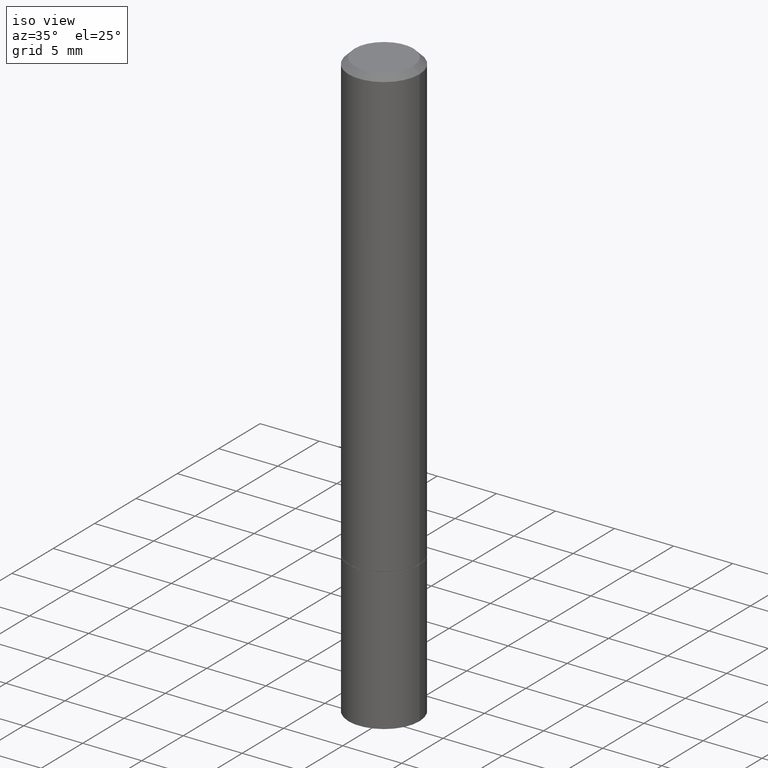
[diagram: clean part render]
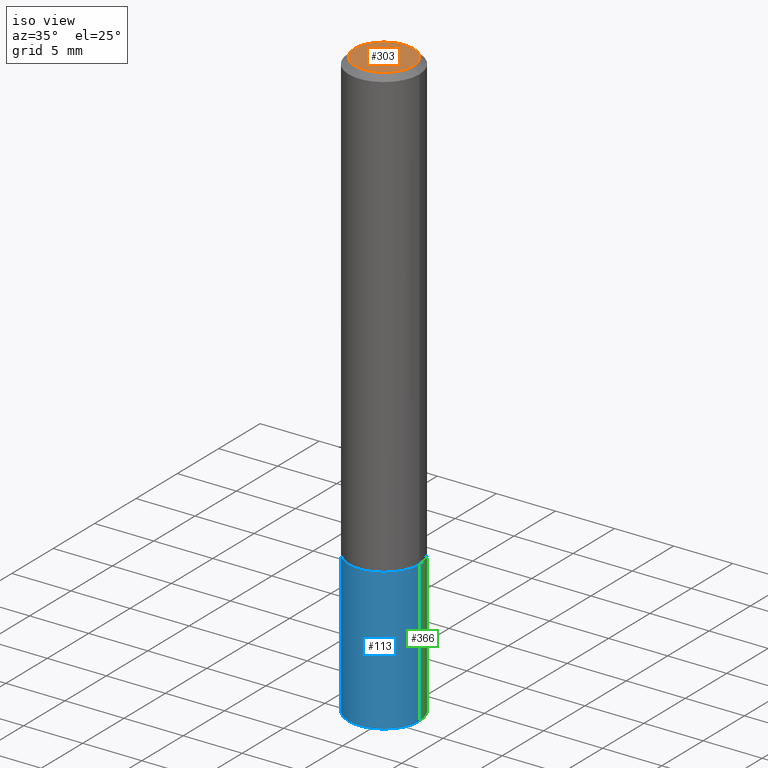
[diagram: same view with three faces highlighted in distinct colors, each labeled with its STEP entity id]
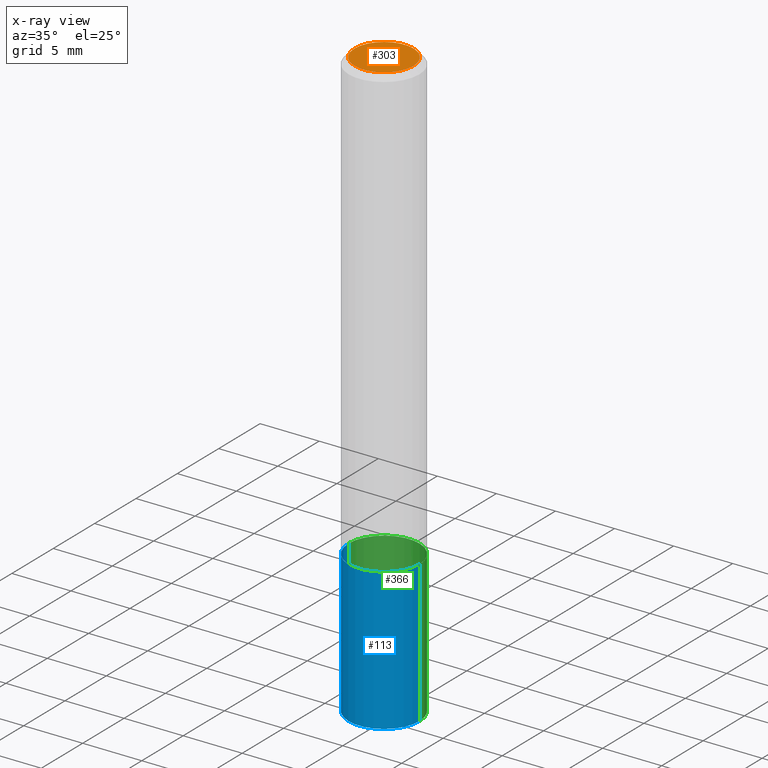
[diagram: x-ray of the same camera — body ghosted, the three highlighted faces saturated]
A machine part, iso view with three faces highlighted in distinct colors.
The next image is the same camera in x-ray (body ghosted, the three faces saturated) — at least one of them is partly hidden behind the body in this view.
Their STEP definitions:

[orange] entity #303 — the highlighted planar face has unit normal (0, -0, -1).
#4 = ORIENTED_EDGE ( 'NONE', *, *, #172, .T. ) ;
#18 = CIRCLE ( 'NONE', #291, 0.09809999999999979847 ) ;
#28 = DIRECTION ( 'NONE',  ( -2.445468806185136597E-29, 3.491481338843145583E-15, 1.000000000000000000 ) ) ;
#51 = CARTESIAN_POINT ( 'NONE',  ( 6.850286386810212718E-16, 0.09809999999999979847, -3.510513443207126726E-16 ) ) ;
#78 = DIRECTION ( 'NONE',  ( 2.438088387897960049E-29, -3.491481338843145188E-15, -1.000000000000000000 ) ) ;
#81 = CARTESIAN_POINT ( 'NONE',  ( -0.09809999999999979847, 7.199434520694523292E-16, -1.707404996040655701E-17 ) ) ;
#130 = FACE_OUTER_BOUND ( 'NONE', #318, .T. ) ;
#131 = DIRECTION ( 'NONE',  ( -2.445468806185136597E-29, 3.491481338843145583E-15, 1.000000000000000000 ) ) ;
#172 = EDGE_CURVE ( 'NONE', #226, #352, #319, .T. ) ;
#203 = AXIS2_PLACEMENT_3D ( 'NONE', #51, #78, #243 ) ;
#209 = AXIS2_PLACEMENT_3D ( 'NONE', #238, #131, #222 ) ;
#219 = CARTESIAN_POINT ( 'NONE',  ( 4.175405657340879278E-46, -5.961372681521788801E-32, -1.707404996040164512E-17 ) ) ;
#222 = DIRECTION ( 'NONE',  ( 1.000000000000000000, -6.982962677686267499E-15, 4.875229006325907382E-29 ) ) ;
#226 = VERTEX_POINT ( 'NONE', #81 ) ;
#229 = ORIENTED_EDGE ( 'NONE', *, *, #252, .T. ) ;
#238 = CARTESIAN_POINT ( 'NONE',  ( 4.175405657340879278E-46, -5.961372681521788801E-32, -1.707404996040164512E-17 ) ) ;
#243 = DIRECTION ( 'NONE',  ( -1.000000000000000000, 6.982962677686265922E-15, -4.876176775795935793E-29 ) ) ;
#252 = EDGE_CURVE ( 'NONE', #352, #226, #18, .T. ) ;
#289 = CARTESIAN_POINT ( 'NONE',  ( 0.09809999999999979847, -7.765346469475326737E-16, -1.707404996039653601E-17 ) ) ;
#291 = AXIS2_PLACEMENT_3D ( 'NONE', #219, #28, #365 ) ;
#303 = ADVANCED_FACE ( 'NONE', ( #130 ), #336, .F. ) ;
#318 = EDGE_LOOP ( 'NONE', ( #4, #229 ) ) ;
#319 = CIRCLE ( 'NONE', #209, 0.09809999999999979847 ) ;
#336 = PLANE ( 'NONE',  #203 ) ;
#352 = VERTEX_POINT ( 'NONE', #289 ) ;
#365 = DIRECTION ( 'NONE',  ( 1.000000000000000000, -6.982962677686267499E-15, 4.875229006325907382E-29 ) ) ;

[blue] entity #113 — the highlighted cylindrical surface (partial cylindrical patch) has radius 2.9997 mm, axis along (-0, 0, 1).
#5 = VECTOR ( 'NONE', #174, 39.37007874015748143 ) ;
#9 = FACE_OUTER_BOUND ( 'NONE', #29, .T. ) ;
#16 = DIRECTION ( 'NONE',  ( -2.445468806185136597E-29, 3.491481338843145583E-15, 1.000000000000000000 ) ) ;
#19 = DIRECTION ( 'NONE',  ( -2.445468806185136877E-29, 3.491481338843145188E-15, 1.000000000000000000 ) ) ;
#26 = CARTESIAN_POINT ( 'NONE',  ( -0.1180999999999999966, 8.391509709326782957E-16, -5.809262341591043784E-30 ) ) ;
#29 = EDGE_LOOP ( 'NONE', ( #259, #67, #40, #138 ) ) ;
#36 = CARTESIAN_POINT ( 'NONE',  ( 4.813905344975441835E-29, -6.872981015512731707E-15, -1.968500000000000139 ) ) ;
#40 = ORIENTED_EDGE ( 'NONE', *, *, #96, .T. ) ;
#60 = EDGE_CURVE ( 'NONE', #144, #88, #296, .T. ) ;
#63 = DIRECTION ( 'NONE',  ( -2.445468806185136597E-29, 3.491481338843145583E-15, 1.000000000000000000 ) ) ;
#67 = ORIENTED_EDGE ( 'NONE', *, *, #145, .T. ) ;
#86 = VECTOR ( 'NONE', #19, 39.37007874015748143 ) ;
#88 = VERTEX_POINT ( 'NONE', #176 ) ;
#96 = EDGE_CURVE ( 'NONE', #341, #88, #236, .T. ) ;
#105 = CIRCLE ( 'NONE', #183, 0.1180999999999999966 ) ;
#113 = ADVANCED_FACE ( 'NONE', ( #9 ), #124, .T. ) ;
#121 = CARTESIAN_POINT ( 'NONE',  ( 0.000000000000000000, 0.000000000000000000, 0.000000000000000000 ) ) ;
#124 = CYLINDRICAL_SURFACE ( 'NONE', #132, 0.1180999999999999966 ) ;
#132 = AXIS2_PLACEMENT_3D ( 'NONE', #121, #180, #207 ) ;
#138 = ORIENTED_EDGE ( 'NONE', *, *, #60, .F. ) ;
#144 = VERTEX_POINT ( 'NONE', #294 ) ;
#145 = EDGE_CURVE ( 'NONE', #286, #341, #105, .T. ) ;
#147 = DIRECTION ( 'NONE',  ( 1.000000000000000000, -6.982962677686265133E-15, 0.000000000000000000 ) ) ;
#174 = DIRECTION ( 'NONE',  ( -2.445468806185136877E-29, 3.491481338843145188E-15, 1.000000000000000000 ) ) ;
#176 = CARTESIAN_POINT ( 'NONE',  ( 0.1180999999999999966, -6.048293123277977134E-15, -1.496099999999999985 ) ) ;
#180 = DIRECTION ( 'NONE',  ( -2.445468806185136597E-29, 3.491481338843145583E-15, 1.000000000000000000 ) ) ;
#182 = LINE ( 'NONE', #26, #86 ) ;
#183 = AXIS2_PLACEMENT_3D ( 'NONE', #36, #63, #147 ) ;
#188 = CARTESIAN_POINT ( 'NONE',  ( 0.1180999999999999966, -7.697668907747479970E-15, -1.968500000000000139 ) ) ;
#207 = DIRECTION ( 'NONE',  ( 1.000000000000000000, -6.982962677686266711E-15, 4.876176775795936353E-29 ) ) ;
#236 = LINE ( 'NONE', #265, #5 ) ;
#259 = ORIENTED_EDGE ( 'NONE', *, *, #288, .F. ) ;
#260 = CARTESIAN_POINT ( 'NONE',  ( 3.658665880933582389E-29, -5.223605231043229660E-15, -1.496099999999999985 ) ) ;
#263 = AXIS2_PLACEMENT_3D ( 'NONE', #260, #16, #302 ) ;
#265 = CARTESIAN_POINT ( 'NONE',  ( 0.1180999999999999966, -8.246878922347480654E-16, 5.758764772215000440E-30 ) ) ;
#286 = VERTEX_POINT ( 'NONE', #338 ) ;
#288 = EDGE_CURVE ( 'NONE', #286, #144, #182, .T. ) ;
#294 = CARTESIAN_POINT ( 'NONE',  ( -0.1180999999999999966, -5.209142152345302092E-15, -1.496099999999999985 ) ) ;
#296 = CIRCLE ( 'NONE', #263, 0.1180999999999999966 ) ;
#302 = DIRECTION ( 'NONE',  ( 1.000000000000000000, -6.982962677686265133E-15, 0.000000000000000000 ) ) ;
#338 = CARTESIAN_POINT ( 'NONE',  ( -0.1180999999999999966, -5.209142152345302092E-15, -1.968500000000000139 ) ) ;
#341 = VERTEX_POINT ( 'NONE', #188 ) ;

[green] entity #366 — the highlighted cylindrical surface (partial cylindrical patch) has radius 2.9997 mm, axis along (-0, 0, 1).
#5 = VECTOR ( 'NONE', #174, 39.37007874015748143 ) ;
#19 = DIRECTION ( 'NONE',  ( -2.445468806185136877E-29, 3.491481338843145188E-15, 1.000000000000000000 ) ) ;
#26 = CARTESIAN_POINT ( 'NONE',  ( -0.1180999999999999966, 8.391509709326782957E-16, -5.809262341591043784E-30 ) ) ;
#30 = EDGE_LOOP ( 'NONE', ( #58, #115, #193, #118 ) ) ;
#50 = EDGE_CURVE ( 'NONE', #341, #286, #179, .T. ) ;
#52 = CYLINDRICAL_SURFACE ( 'NONE', #345, 0.1180999999999999966 ) ;
#58 = ORIENTED_EDGE ( 'NONE', *, *, #50, .T. ) ;
#82 = DIRECTION ( 'NONE',  ( 1.000000000000000000, -6.982962677686266711E-15, 4.876176775795936353E-29 ) ) ;
#86 = VECTOR ( 'NONE', #19, 39.37007874015748143 ) ;
#87 = CARTESIAN_POINT ( 'NONE',  ( 0.000000000000000000, 0.000000000000000000, 0.000000000000000000 ) ) ;
#88 = VERTEX_POINT ( 'NONE', #176 ) ;
#96 = EDGE_CURVE ( 'NONE', #341, #88, #236, .T. ) ;
#115 = ORIENTED_EDGE ( 'NONE', *, *, #288, .T. ) ;
#118 = ORIENTED_EDGE ( 'NONE', *, *, #96, .F. ) ;
#128 = DIRECTION ( 'NONE',  ( -2.445468806185136597E-29, 3.491481338843145583E-15, 1.000000000000000000 ) ) ;
#139 = FACE_OUTER_BOUND ( 'NONE', #30, .T. ) ;
#144 = VERTEX_POINT ( 'NONE', #294 ) ;
#150 = CARTESIAN_POINT ( 'NONE',  ( 4.813905344975441835E-29, -6.872981015512731707E-15, -1.968500000000000139 ) ) ;
#171 = AXIS2_PLACEMENT_3D ( 'NONE', #250, #191, #331 ) ;
#174 = DIRECTION ( 'NONE',  ( -2.445468806185136877E-29, 3.491481338843145188E-15, 1.000000000000000000 ) ) ;
#176 = CARTESIAN_POINT ( 'NONE',  ( 0.1180999999999999966, -6.048293123277977134E-15, -1.496099999999999985 ) ) ;
#179 = CIRCLE ( 'NONE', #227, 0.1180999999999999966 ) ;
#182 = LINE ( 'NONE', #26, #86 ) ;
#188 = CARTESIAN_POINT ( 'NONE',  ( 0.1180999999999999966, -7.697668907747479970E-15, -1.968500000000000139 ) ) ;
#190 = CIRCLE ( 'NONE', #171, 0.1180999999999999966 ) ;
#191 = DIRECTION ( 'NONE',  ( -2.445468806185136597E-29, 3.491481338843145583E-15, 1.000000000000000000 ) ) ;
#193 = ORIENTED_EDGE ( 'NONE', *, *, #239, .F. ) ;
#227 = AXIS2_PLACEMENT_3D ( 'NONE', #150, #128, #328 ) ;
#236 = LINE ( 'NONE', #265, #5 ) ;
#239 = EDGE_CURVE ( 'NONE', #88, #144, #190, .T. ) ;
#250 = CARTESIAN_POINT ( 'NONE',  ( 3.658665880933582389E-29, -5.223605231043229660E-15, -1.496099999999999985 ) ) ;
#265 = CARTESIAN_POINT ( 'NONE',  ( 0.1180999999999999966, -8.246878922347480654E-16, 5.758764772215000440E-30 ) ) ;
#286 = VERTEX_POINT ( 'NONE', #338 ) ;
#288 = EDGE_CURVE ( 'NONE', #286, #144, #182, .T. ) ;
#294 = CARTESIAN_POINT ( 'NONE',  ( -0.1180999999999999966, -5.209142152345302092E-15, -1.496099999999999985 ) ) ;
#328 = DIRECTION ( 'NONE',  ( 1.000000000000000000, -6.982962677686265133E-15, 0.000000000000000000 ) ) ;
#331 = DIRECTION ( 'NONE',  ( 1.000000000000000000, -6.982962677686265133E-15, 0.000000000000000000 ) ) ;
#338 = CARTESIAN_POINT ( 'NONE',  ( -0.1180999999999999966, -5.209142152345302092E-15, -1.968500000000000139 ) ) ;
#341 = VERTEX_POINT ( 'NONE', #188 ) ;
#342 = DIRECTION ( 'NONE',  ( -2.445468806185136597E-29, 3.491481338843145583E-15, 1.000000000000000000 ) ) ;
#345 = AXIS2_PLACEMENT_3D ( 'NONE', #87, #342, #82 ) ;
#366 = ADVANCED_FACE ( 'NONE', ( #139 ), #52, .T. ) ;